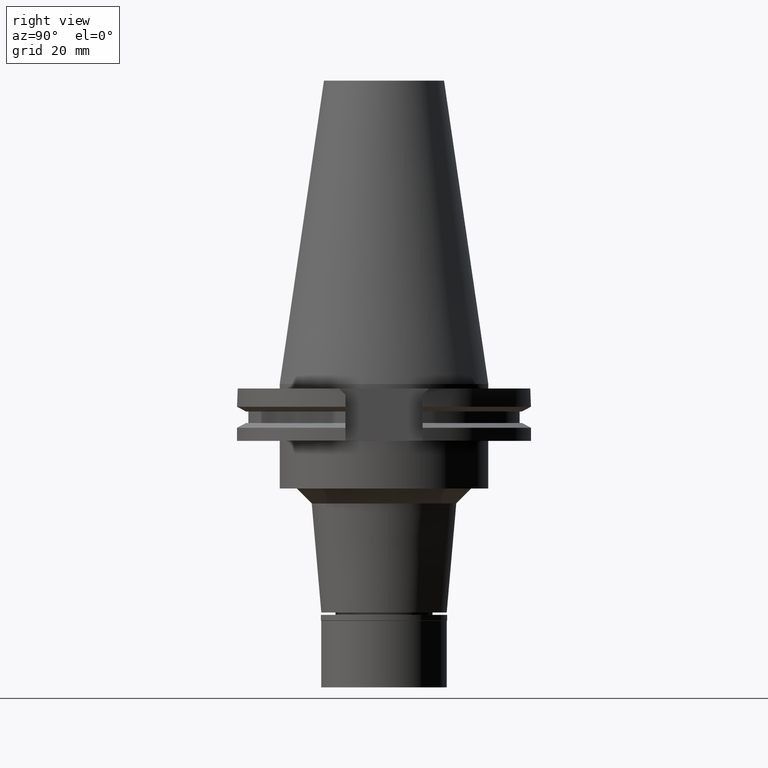
[diagram: clean part render]
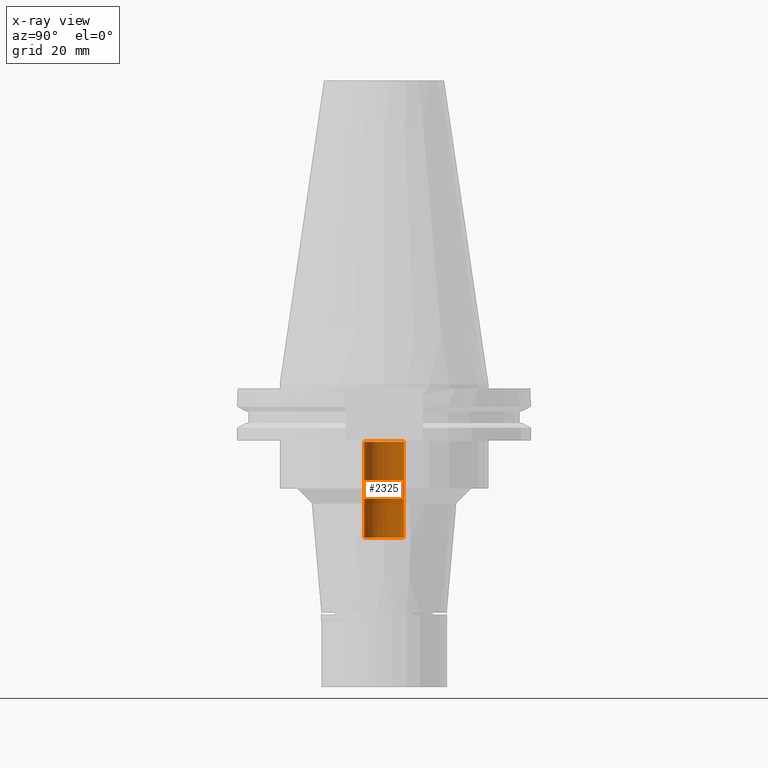
[diagram: x-ray — body ghosted, one internal face saturated and labeled with its STEP entity id]
A machine part, right view, then the same camera in x-ray: the body is ghosted and one INTERNAL B-rep face — a face not visible from any outside direction — is saturated and labeled: STEP entity #2325.
In plain terms, the highlighted cylindrical surface (edge-blend (fillet) strip) has radius 6.65 mm, axis along (0, 0, -1).
Its self-contained STEP definition (entity closure, byte-faithful):
#82 = CARTESIAN_POINT ( 'NONE',  ( 0.0000000000000000000, 6.649999999999999467, -19.40000000000000213 ) ) ;
#119 = ORIENTED_EDGE ( 'NONE', *, *, #641, .T. ) ;
#216 = ORIENTED_EDGE ( 'NONE', *, *, #2045, .T. ) ;
#556 = AXIS2_PLACEMENT_3D ( 'NONE', #2187, #3237, #1440 ) ;
#617 = AXIS2_PLACEMENT_3D ( 'NONE', #2575, #1313, #1352 ) ;
#634 = EDGE_LOOP ( 'NONE', ( #119, #2114, #1729, #216 ) ) ;
#641 = EDGE_CURVE ( 'NONE', #2924, #3143, #1101, .T. ) ;
#816 = VERTEX_POINT ( 'NONE', #2272 ) ;
#904 = DIRECTION ( 'NONE',  ( 0.0000000000000000000, 0.0000000000000000000, 1.000000000000000000 ) ) ;
#991 = CARTESIAN_POINT ( 'NONE',  ( 0.0000000000000000000, 6.649999999999999467, -51.39999999999999858 ) ) ;
#1101 = CIRCLE ( 'NONE', #2824, 6.649999999999999467 ) ;
#1157 = LINE ( 'NONE', #2196, #3205 ) ;
#1267 = VERTEX_POINT ( 'NONE', #2712 ) ;
#1313 = DIRECTION ( 'NONE',  ( 0.0000000000000000000, 0.0000000000000000000, -1.000000000000000000 ) ) ;
#1352 = DIRECTION ( 'NONE',  ( 0.0000000000000000000, -1.000000000000000000, 0.0000000000000000000 ) ) ;
#1440 = DIRECTION ( 'NONE',  ( 0.0000000000000000000, -1.000000000000000000, 0.0000000000000000000 ) ) ;
#1493 = EDGE_CURVE ( 'NONE', #1267, #3143, #1157, .T. ) ;
#1557 = FACE_OUTER_BOUND ( 'NONE', #634, .T. ) ;
#1729 = ORIENTED_EDGE ( 'NONE', *, *, #2864, .T. ) ;
#1792 = DIRECTION ( 'NONE',  ( 0.0000000000000000000, 0.0000000000000000000, 1.000000000000000000 ) ) ;
#1966 = CARTESIAN_POINT ( 'NONE',  ( 0.0000000000000000000, 2.588719636377999795E-14, -19.40000000000000213 ) ) ;
#2045 = EDGE_CURVE ( 'NONE', #816, #2924, #2047, .T. ) ;
#2047 = LINE ( 'NONE', #991, #2787 ) ;
#2114 = ORIENTED_EDGE ( 'NONE', *, *, #1493, .F. ) ;
#2171 = CYLINDRICAL_SURFACE ( 'NONE', #556, 6.649999999999999467 ) ;
#2187 = CARTESIAN_POINT ( 'NONE',  ( 0.0000000000000000000, 2.588719636377999795E-14, 111.3849999999999909 ) ) ;
#2196 = CARTESIAN_POINT ( 'NONE',  ( 0.0000000000000000000, -6.649999999999999467, -51.39999999999999858 ) ) ;
#2272 = CARTESIAN_POINT ( 'NONE',  ( 0.0000000000000000000, 6.649999999999999467, -51.39999999999999858 ) ) ;
#2325 = ADVANCED_FACE ( 'NONE', ( #1557 ), #2171, .F. ) ;
#2465 = DIRECTION ( 'NONE',  ( 0.0000000000000000000, 1.000000000000000000, 0.0000000000000000000 ) ) ;
#2575 = CARTESIAN_POINT ( 'NONE',  ( 0.0000000000000000000, 2.588719636377999795E-14, -51.39999999999999858 ) ) ;
#2626 = CIRCLE ( 'NONE', #617, 6.649999999999999467 ) ;
#2712 = CARTESIAN_POINT ( 'NONE',  ( 0.0000000000000000000, -6.649999999999999467, -51.39999999999999858 ) ) ;
#2787 = VECTOR ( 'NONE', #1792, 1000.000000000000000 ) ;
#2824 = AXIS2_PLACEMENT_3D ( 'NONE', #1966, #2929, #2465 ) ;
#2864 = EDGE_CURVE ( 'NONE', #1267, #816, #2626, .T. ) ;
#2924 = VERTEX_POINT ( 'NONE', #82 ) ;
#2929 = DIRECTION ( 'NONE',  ( 0.0000000000000000000, 0.0000000000000000000, 1.000000000000000000 ) ) ;
#3052 = CARTESIAN_POINT ( 'NONE',  ( 0.0000000000000000000, -6.649999999999999467, -19.40000000000000213 ) ) ;
#3143 = VERTEX_POINT ( 'NONE', #3052 ) ;
#3205 = VECTOR ( 'NONE', #904, 1000.000000000000000 ) ;
#3237 = DIRECTION ( 'NONE',  ( 0.0000000000000000000, 0.0000000000000000000, -1.000000000000000000 ) ) ;